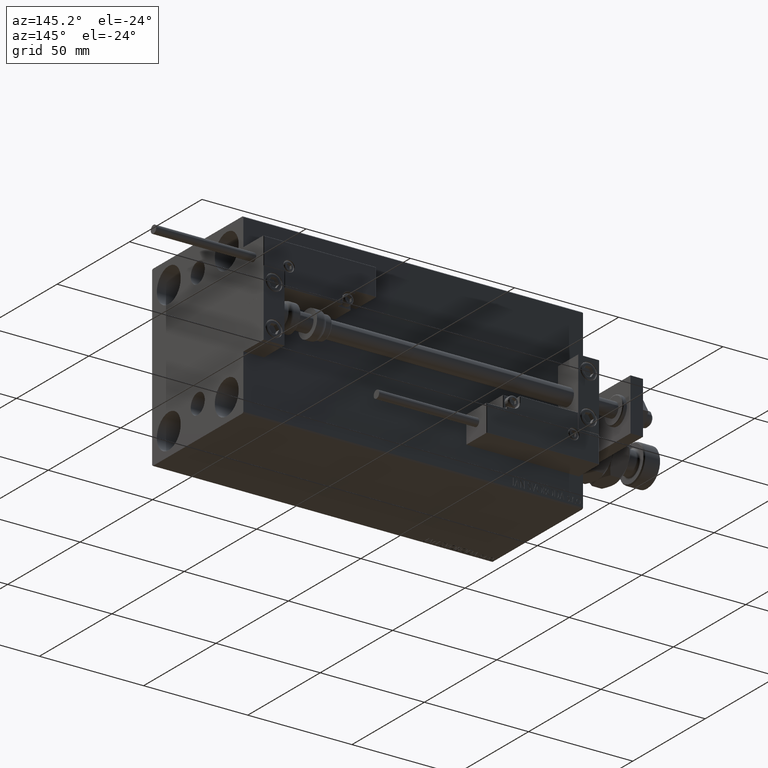
[diagram: clean part render]
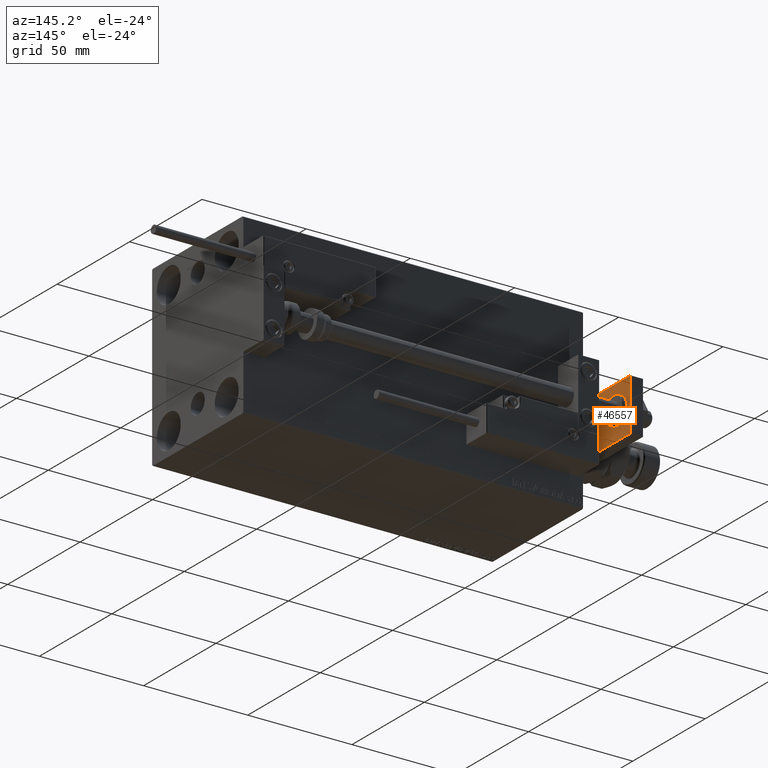
[diagram: same view with one face highlighted and labeled with its STEP entity id]
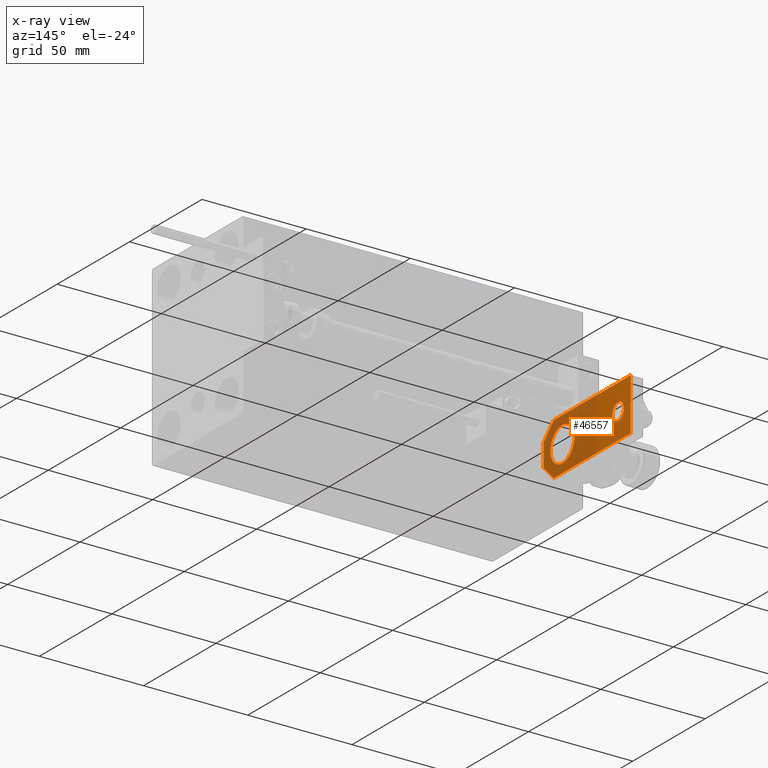
[diagram: x-ray of the same camera — body ghosted, the highlighted face saturated]
A machine part, auxiliary view. The second image highlights one B-rep face of the part: STEP entity #46557.
The next image is the same camera in x-ray: the body ghosted, the highlighted face saturated — about 54% of this face is hidden behind the body in this view.
In plain terms, the highlighted planar face has unit normal (-1, 0, 0).
Its self-contained STEP definition (entity closure, byte-faithful):
#1047 = DIRECTION ( 'NONE',  ( 0.000000000000000000, 0.000000000000000000, 1.000000000000000000 ) ) ;
#1817 = CIRCLE ( 'NONE', #47720, 8.250000000000000000 ) ;
#1914 = CARTESIAN_POINT ( 'NONE',  ( -9.629649721936179265E-32, 12.99999999999999822, 0.000000000000000000 ) ) ;
#2641 = DIRECTION ( 'NONE',  ( -0.000000000000000000, 0.000000000000000000, 1.000000000000000000 ) ) ;
#3026 = DIRECTION ( 'NONE',  ( -1.000000000000000000, 0.000000000000000000, 0.000000000000000000 ) ) ;
#3545 = EDGE_CURVE ( 'NONE', #26119, #32472, #44170, .T. ) ;
#3897 = EDGE_CURVE ( 'NONE', #18924, #50432, #16385, .T. ) ;
#4012 = CARTESIAN_POINT ( 'NONE',  ( -1.432611055310774642E-16, 51.50000000000000000, 0.000000000000000000 ) ) ;
#4020 = ORIENTED_EDGE ( 'NONE', *, *, #21507, .T. ) ;
#4801 = EDGE_CURVE ( 'NONE', #22820, #37316, #36191, .T. ) ;
#5648 = DIRECTION ( 'NONE',  ( -0.7071067811865465735, 0.7071067811865485719, -0.000000000000000000 ) ) ;
#6114 = VECTOR ( 'NONE', #43916, 1000.000000000000000 ) ;
#6572 = VECTOR ( 'NONE', #3026, 1000.000000000000000 ) ;
#6934 = ORIENTED_EDGE ( 'NONE', *, *, #40931, .T. ) ;
#7625 = VERTEX_POINT ( 'NONE', #43520 ) ;
#7633 = AXIS2_PLACEMENT_3D ( 'NONE', #51095, #1047, #15750 ) ;
#8089 = ORIENTED_EDGE ( 'NONE', *, *, #14706, .F. ) ;
#8483 = AXIS2_PLACEMENT_3D ( 'NONE', #37700, #2641, #50508 ) ;
#8686 = CARTESIAN_POINT ( 'NONE',  ( -12.50000000000000355, 7.000000000000013323, 0.000000000000000000 ) ) ;
#9463 = CARTESIAN_POINT ( 'NONE',  ( 5.499999999999976907, 4.814824860968089633E-32, 0.000000000000000000 ) ) ;
#9806 = CARTESIAN_POINT ( 'NONE',  ( -5.500000000000010658, 4.814824860968089633E-32, 0.000000000000000000 ) ) ;
#9838 = CARTESIAN_POINT ( 'NONE',  ( -9.629649721936179265E-32, 12.99999999999999822, 0.000000000000000000 ) ) ;
#10250 = DIRECTION ( 'NONE',  ( 1.000000000000000000, 0.000000000000000000, 0.000000000000000000 ) ) ;
#11163 = DIRECTION ( 'NONE',  ( -0.7071067811865486830, -0.7071067811865464625, -0.000000000000000000 ) ) ;
#11932 = EDGE_LOOP ( 'NONE', ( #27908, #45140, #17736, #8089, #23019, #4020 ) ) ;
#12598 = VECTOR ( 'NONE', #15360, 1000.000000000000000 ) ;
#14090 = CIRCLE ( 'NONE', #24129, 8.250000000000000000 ) ;
#14146 = FACE_BOUND ( 'NONE', #46967, .T. ) ;
#14706 = EDGE_CURVE ( 'NONE', #32472, #27005, #19480, .T. ) ;
#15097 = LINE ( 'NONE', #43336, #12598 ) ;
#15360 = DIRECTION ( 'NONE',  ( -8.673617379884035472E-17, -1.000000000000000000, 0.000000000000000000 ) ) ;
#15685 = VECTOR ( 'NONE', #5648, 1000.000000000000000 ) ;
#15750 = DIRECTION ( 'NONE',  ( 1.000000000000000000, 0.000000000000000000, 0.000000000000000000 ) ) ;
#16029 = DIRECTION ( 'NONE',  ( 1.000000000000000000, 0.000000000000000000, 0.000000000000000000 ) ) ;
#16385 = LINE ( 'NONE', #48305, #21104 ) ;
#16956 = CARTESIAN_POINT ( 'NONE',  ( 12.50000000000000355, 4.814824860968089633E-32, 0.000000000000000000 ) ) ;
#17736 = ORIENTED_EDGE ( 'NONE', *, *, #22399, .F. ) ;
#17843 = DIRECTION ( 'NONE',  ( 0.000000000000000000, 0.000000000000000000, 1.000000000000000000 ) ) ;
#18438 = CARTESIAN_POINT ( 'NONE',  ( -4.000000000000000888, 51.50000000000000000, 0.000000000000000000 ) ) ;
#18924 = VERTEX_POINT ( 'NONE', #24107 ) ;
#19480 = LINE ( 'NONE', #38856, #6572 ) ;
#19943 = DIRECTION ( 'NONE',  ( 0.000000000000000000, 0.000000000000000000, 1.000000000000000000 ) ) ;
#20199 = EDGE_LOOP ( 'NONE', ( #6934, #40451 ) ) ;
#21104 = VECTOR ( 'NONE', #44377, 1000.000000000000000 ) ;
#21507 = EDGE_CURVE ( 'NONE', #26119, #50432, #35237, .T. ) ;
#21588 = LINE ( 'NONE', #9806, #15685 ) ;
#22399 = EDGE_CURVE ( 'NONE', #27005, #49468, #15097, .T. ) ;
#22507 = FACE_BOUND ( 'NONE', #20199, .T. ) ;
#22820 = VERTEX_POINT ( 'NONE', #18438 ) ;
#23019 = ORIENTED_EDGE ( 'NONE', *, *, #3545, .F. ) ;
#23268 = EDGE_CURVE ( 'NONE', #37316, #22820, #46874, .T. ) ;
#23823 = CARTESIAN_POINT ( 'NONE',  ( 8.250000000000000000, 13.00000000000000000, 0.000000000000000000 ) ) ;
#23964 = ORIENTED_EDGE ( 'NONE', *, *, #23268, .T. ) ;
#24107 = CARTESIAN_POINT ( 'NONE',  ( -5.500000000000010658, 4.814824860968089633E-32, 0.000000000000000000 ) ) ;
#24129 = AXIS2_PLACEMENT_3D ( 'NONE', #1914, #17843, #10250 ) ;
#24254 = VECTOR ( 'NONE', #11163, 999.9999999999998863 ) ;
#25797 = DIRECTION ( 'NONE',  ( 0.000000000000000000, 0.000000000000000000, 1.000000000000000000 ) ) ;
#26119 = VERTEX_POINT ( 'NONE', #35859 ) ;
#27005 = VERTEX_POINT ( 'NONE', #44544 ) ;
#27908 = ORIENTED_EDGE ( 'NONE', *, *, #3897, .F. ) ;
#29500 = AXIS2_PLACEMENT_3D ( 'NONE', #4012, #19943, #16029 ) ;
#30099 = PLANE ( 'NONE',  #8483 ) ;
#30487 = DIRECTION ( 'NONE',  ( 1.000000000000000000, 0.000000000000000000, 0.000000000000000000 ) ) ;
#32035 = CARTESIAN_POINT ( 'NONE',  ( 12.50000000000000355, 60.00000000000000000, 0.000000000000000000 ) ) ;
#32472 = VERTEX_POINT ( 'NONE', #32035 ) ;
#35237 = LINE ( 'NONE', #51205, #24254 ) ;
#35859 = CARTESIAN_POINT ( 'NONE',  ( 12.50000000000000355, 7.000000000000006217, 0.000000000000000000 ) ) ;
#36033 = CARTESIAN_POINT ( 'NONE',  ( 4.000000000000000888, 51.50000000000000000, 0.000000000000000000 ) ) ;
#36191 = CIRCLE ( 'NONE', #29500, 4.000000000000000888 ) ;
#37316 = VERTEX_POINT ( 'NONE', #36033 ) ;
#37700 = CARTESIAN_POINT ( 'NONE',  ( 0.000000000000000000, 0.000000000000000000, 0.000000000000000000 ) ) ;
#38642 = EDGE_CURVE ( 'NONE', #18924, #49468, #21588, .T. ) ;
#38856 = CARTESIAN_POINT ( 'NONE',  ( 12.50000000000000355, 60.00000000000000000, 0.000000000000000000 ) ) ;
#40451 = ORIENTED_EDGE ( 'NONE', *, *, #49883, .T. ) ;
#40931 = EDGE_CURVE ( 'NONE', #7625, #41087, #14090, .T. ) ;
#41087 = VERTEX_POINT ( 'NONE', #23823 ) ;
#43336 = CARTESIAN_POINT ( 'NONE',  ( -12.49999999999999822, 60.00000000000000000, 0.000000000000000000 ) ) ;
#43520 = CARTESIAN_POINT ( 'NONE',  ( -8.250000000000000000, 12.99999999999999822, 0.000000000000000000 ) ) ;
#43916 = DIRECTION ( 'NONE',  ( 0.000000000000000000, 1.000000000000000000, 0.000000000000000000 ) ) ;
#44170 = LINE ( 'NONE', #16956, #6114 ) ;
#44377 = DIRECTION ( 'NONE',  ( 1.000000000000000000, 0.000000000000000000, 0.000000000000000000 ) ) ;
#44544 = CARTESIAN_POINT ( 'NONE',  ( -12.49999999999999822, 60.00000000000000000, 0.000000000000000000 ) ) ;
#45140 = ORIENTED_EDGE ( 'NONE', *, *, #38642, .T. ) ;
#45421 = ORIENTED_EDGE ( 'NONE', *, *, #4801, .T. ) ;
#46068 = FACE_OUTER_BOUND ( 'NONE', #11932, .T. ) ;
#46557 = ADVANCED_FACE ( 'NONE', ( #46068, #14146, #22507 ), #30099, .F. ) ;
#46874 = CIRCLE ( 'NONE', #7633, 4.000000000000000888 ) ;
#46967 = EDGE_LOOP ( 'NONE', ( #45421, #23964 ) ) ;
#47720 = AXIS2_PLACEMENT_3D ( 'NONE', #9838, #25797, #30487 ) ;
#48305 = CARTESIAN_POINT ( 'NONE',  ( -12.50000000000000355, 4.814824860968089633E-32, 0.000000000000000000 ) ) ;
#49468 = VERTEX_POINT ( 'NONE', #8686 ) ;
#49883 = EDGE_CURVE ( 'NONE', #41087, #7625, #1817, .T. ) ;
#50432 = VERTEX_POINT ( 'NONE', #9463 ) ;
#50508 = DIRECTION ( 'NONE',  ( 1.000000000000000000, 0.000000000000000000, 0.000000000000000000 ) ) ;
#51095 = CARTESIAN_POINT ( 'NONE',  ( -1.432611055310774642E-16, 51.50000000000000000, 0.000000000000000000 ) ) ;
#51205 = CARTESIAN_POINT ( 'NONE',  ( 12.50000000000000355, 7.000000000000006217, 0.000000000000000000 ) ) ;